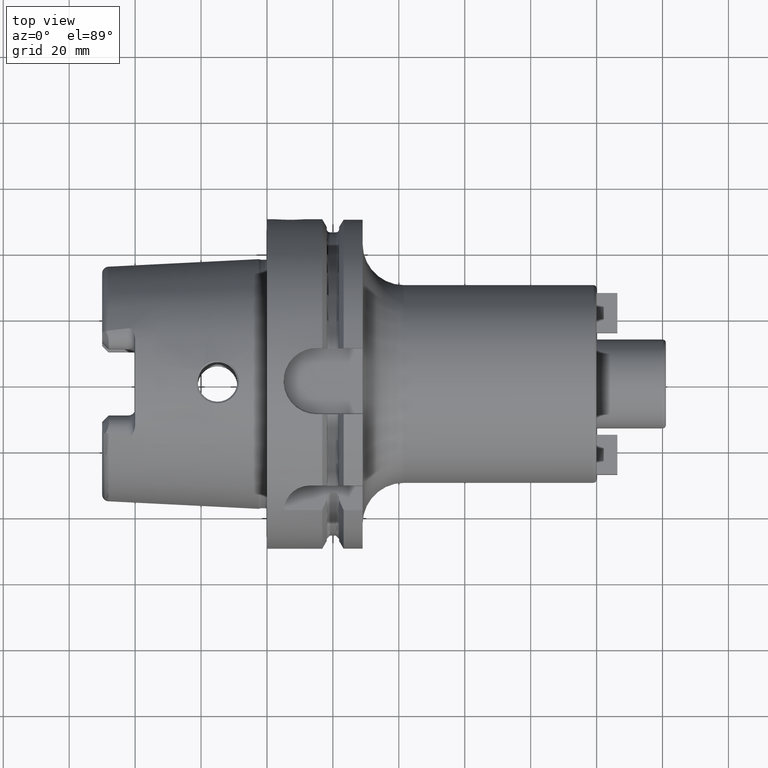
[diagram: clean part render]
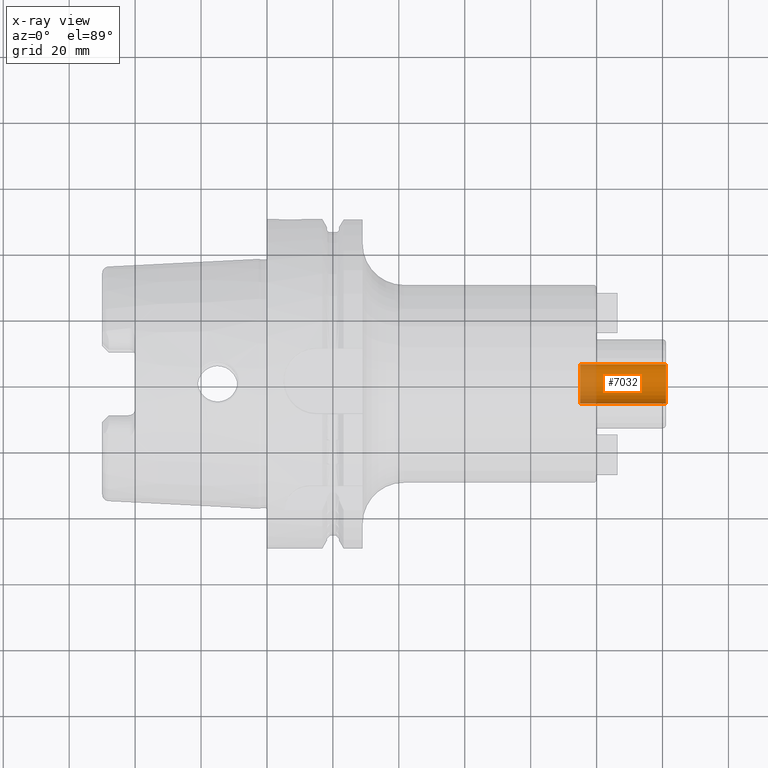
[diagram: x-ray — body ghosted, one internal face saturated and labeled with its STEP entity id]
A machine part, top view, then the same camera in x-ray: the body is ghosted and one INTERNAL B-rep face — a face not visible from any outside direction — is saturated and labeled: STEP entity #7032.
In plain terms, the highlighted cylindrical surface (edge-blend (fillet) strip) has radius 6 mm, axis along (1, 0, 0).
Its self-contained STEP definition (entity closure, byte-faithful):
#6967=CARTESIAN_POINT('',(1.21E2,0.E0,0.E0));
#6968=DIRECTION('',(-1.E0,0.E0,0.E0));
#6969=DIRECTION('',(0.E0,1.E0,0.E0));
#6970=AXIS2_PLACEMENT_3D('',#6967,#6968,#6969);
#6977=DIRECTION('',(-1.E0,0.E0,0.E0));
#6978=VECTOR('',#6977,2.6E1);
#6979=CARTESIAN_POINT('',(1.21E2,6.E0,0.E0));
#6980=LINE('',#6979,#6978);
#6981=DIRECTION('',(-1.E0,0.E0,0.E0));
#6982=VECTOR('',#6981,2.6E1);
#6983=CARTESIAN_POINT('',(1.21E2,-6.E0,0.E0));
#6984=LINE('',#6983,#6982);
#6985=CARTESIAN_POINT('',(9.5E1,0.E0,0.E0));
#6986=DIRECTION('',(1.E0,0.E0,0.E0));
#6987=DIRECTION('',(0.E0,-1.E0,0.E0));
#6988=AXIS2_PLACEMENT_3D('',#6985,#6986,#6987);
#7005=CARTESIAN_POINT('',(9.5E1,-6.E0,0.E0));
#7006=CARTESIAN_POINT('',(9.5E1,6.E0,0.E0));
#7007=VERTEX_POINT('',#7005);
#7008=VERTEX_POINT('',#7006);
#7009=CARTESIAN_POINT('',(1.21E2,-6.E0,0.E0));
#7010=CARTESIAN_POINT('',(1.21E2,6.E0,0.E0));
#7011=VERTEX_POINT('',#7009);
#7012=VERTEX_POINT('',#7010);
#7017=CARTESIAN_POINT('',(8.265989138511E1,0.E0,0.E0));
#7018=DIRECTION('',(1.E0,0.E0,0.E0));
#7019=DIRECTION('',(0.E0,-1.E0,0.E0));
#7020=AXIS2_PLACEMENT_3D('',#7017,#7018,#7019);
#7021=CYLINDRICAL_SURFACE('',#7020,6.E0);
#7023=ORIENTED_EDGE('',*,*,#7022,.T.);
#7025=ORIENTED_EDGE('',*,*,#7024,.T.);
#7027=ORIENTED_EDGE('',*,*,#7026,.T.);
#7029=ORIENTED_EDGE('',*,*,#7028,.F.);
#7030=EDGE_LOOP('',(#7023,#7025,#7027,#7029));
#7031=FACE_OUTER_BOUND('',#7030,.F.);
#7032=ADVANCED_FACE('',(#7031),#7021,.F.);
#6971=CIRCLE('',#6970,6.E0);
#6989=CIRCLE('',#6988,6.E0);
#7022=EDGE_CURVE('',#7012,#7011,#6971,.T.);
#7024=EDGE_CURVE('',#7011,#7007,#6984,.T.);
#7026=EDGE_CURVE('',#7007,#7008,#6989,.T.);
#7028=EDGE_CURVE('',#7012,#7008,#6980,.T.);